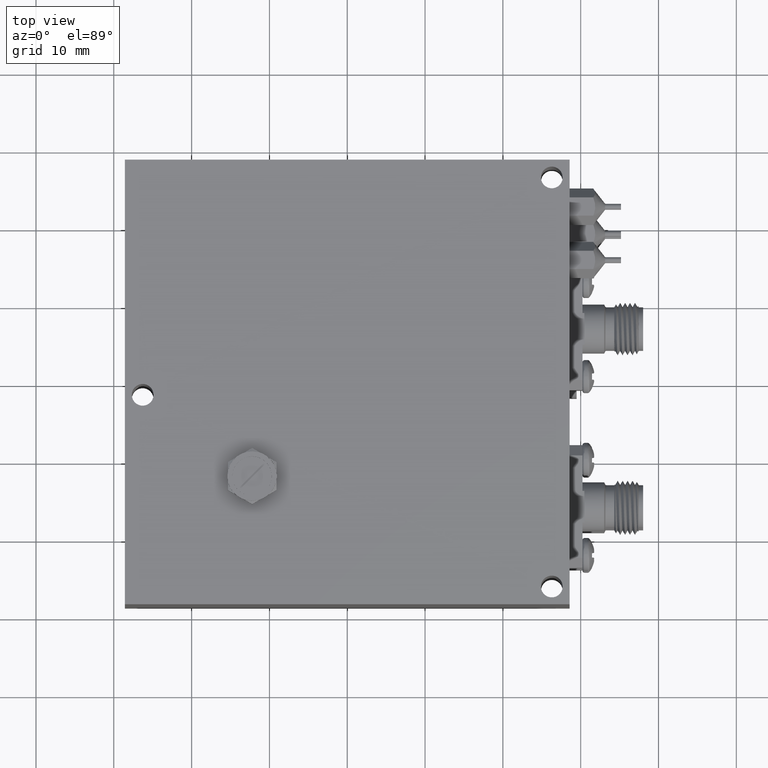
[diagram: clean part render]
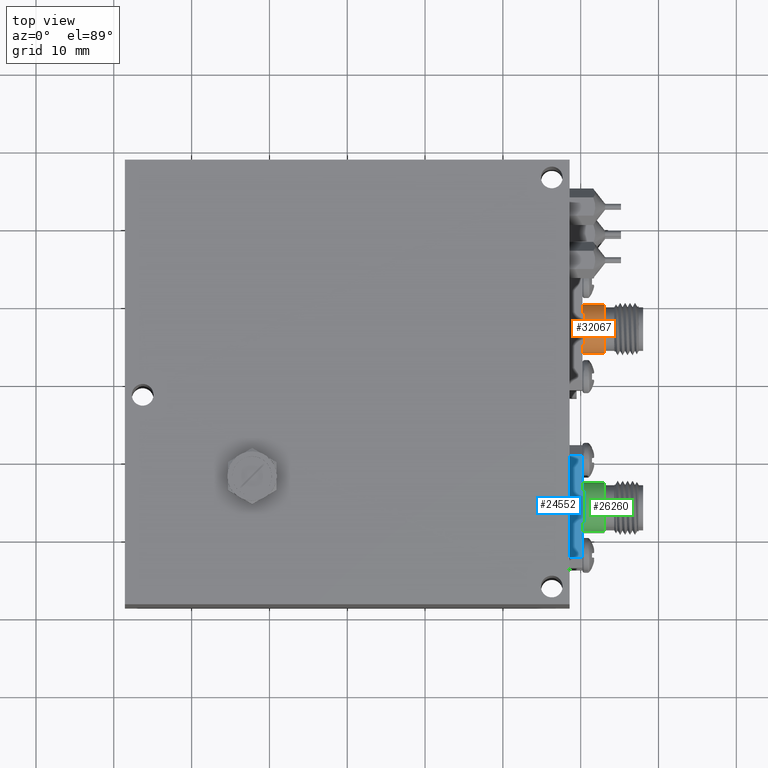
[diagram: same view with three faces highlighted in distinct colors, each labeled with its STEP entity id]
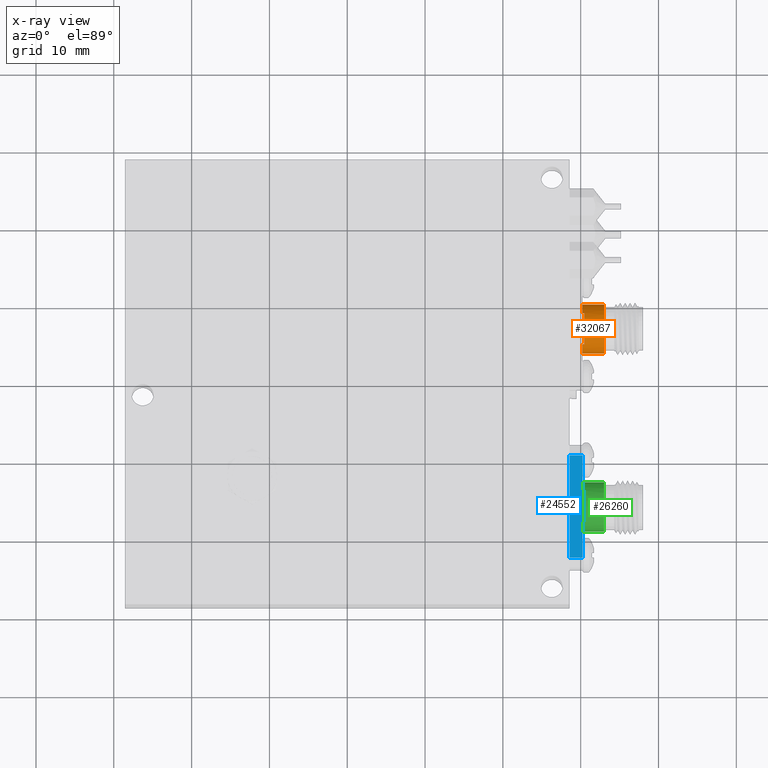
[diagram: x-ray of the same camera — body ghosted, the three highlighted faces saturated]
A machine part, top view with three faces highlighted in distinct colors.
The next image is the same camera in x-ray (body ghosted, the three faces saturated) — at least one of them is partly hidden behind the body in this view.
Their STEP definitions:

[orange] entity #32067 — the highlighted cylindrical surface (edge-blend (fillet) strip) has radius 3.1496 mm, axis along (-1, -0, 0).
#478 = ORIENTED_EDGE ( 'NONE', *, *, #9940, .F. ) ;
#653 = ORIENTED_EDGE ( 'NONE', *, *, #15463, .F. ) ;
#875 = CARTESIAN_POINT ( 'NONE',  ( 1.200000000000000200, 0.3546931615635866600, 0.9250000000000004900 ) ) ;
#1857 = VERTEX_POINT ( 'NONE', #26455 ) ;
#3141 = LINE ( 'NONE', #21406, #26452 ) ;
#3286 = CARTESIAN_POINT ( 'NONE',  ( 1.200000000000000200, 0.1953068384364122800, 0.9250000000000006000 ) ) ;
#3563 = VERTEX_POINT ( 'NONE', #22793 ) ;
#4871 = LINE ( 'NONE', #13957, #8658 ) ;
#5088 = DIRECTION ( 'NONE',  ( 1.000000000000000000, 0.0000000000000000000, -8.474091755303835000E-033 ) ) ;
#5212 = CARTESIAN_POINT ( 'NONE',  ( 1.190000000000000600, 0.2749999999999995200, 0.8300000000000001800 ) ) ;
#5553 = EDGE_CURVE ( 'NONE', #9769, #3563, #22967, .T. ) ;
#5805 = VECTOR ( 'NONE', #24990, 39.37007874015748100 ) ;
#5935 = EDGE_CURVE ( 'NONE', #24160, #9769, #21514, .T. ) ;
#6002 = AXIS2_PLACEMENT_3D ( 'NONE', #15062, #39250, #24485 ) ;
#6583 = DIRECTION ( 'NONE',  ( 0.0000000000000000000, -1.000000000000000000, 0.0000000000000000000 ) ) ;
#6847 = DIRECTION ( 'NONE',  ( -1.000000000000000000, -0.0000000000000000000, 8.474091755303835000E-033 ) ) ;
#7789 = ORIENTED_EDGE ( 'NONE', *, *, #18184, .T. ) ;
#8508 = CIRCLE ( 'NONE', #16072, 0.1240000000000002500 ) ;
#8658 = VECTOR ( 'NONE', #22753, 39.37007874015748100 ) ;
#8689 = CARTESIAN_POINT ( 'NONE',  ( 1.190000000000000600, 0.2749999999999995200, 0.8300000000000001800 ) ) ;
#9769 = VERTEX_POINT ( 'NONE', #3286 ) ;
#9940 = EDGE_CURVE ( 'NONE', #35870, #1857, #4871, .T. ) ;
#12555 = CIRCLE ( 'NONE', #12772, 0.1240000000000002500 ) ;
#12772 = AXIS2_PLACEMENT_3D ( 'NONE', #5212, #5088, #17114 ) ;
#13549 = ORIENTED_EDGE ( 'NONE', *, *, #19931, .T. ) ;
#13957 = CARTESIAN_POINT ( 'NONE',  ( 1.310000000000000500, 0.1509999999999993000, 0.8300000000000001800 ) ) ;
#15062 = CARTESIAN_POINT ( 'NONE',  ( 1.310000000000000500, 0.2749999999999995800, 0.8300000000000001800 ) ) ;
#15463 = EDGE_CURVE ( 'NONE', #24160, #18333, #36625, .T. ) ;
#16072 = AXIS2_PLACEMENT_3D ( 'NONE', #8689, #24005, #26921 ) ;
#16144 = ORIENTED_EDGE ( 'NONE', *, *, #5935, .T. ) ;
#16875 = CARTESIAN_POINT ( 'NONE',  ( 1.200000000000000200, 0.3546931615635866600, 0.9250000000000004900 ) ) ;
#17114 = DIRECTION ( 'NONE',  ( 0.0000000000000000000, -1.000000000000000000, 0.0000000000000000000 ) ) ;
#18144 = DIRECTION ( 'NONE',  ( 1.000000000000000000, 0.0000000000000000000, -8.474091755303835000E-033 ) ) ;
#18184 = EDGE_CURVE ( 'NONE', #27588, #18333, #8508, .T. ) ;
#18333 = VERTEX_POINT ( 'NONE', #25039 ) ;
#18509 = DIRECTION ( 'NONE',  ( -1.000000000000000000, 0.0000000000000000000, 8.474091755303835000E-033 ) ) ;
#19113 = EDGE_LOOP ( 'NONE', ( #478, #38143, #36653, #7789, #653, #16144, #35338, #13549 ) ) ;
#19931 = EDGE_CURVE ( 'NONE', #3563, #1857, #12555, .T. ) ;
#20669 = VERTEX_POINT ( 'NONE', #22132 ) ;
#20702 = AXIS2_PLACEMENT_3D ( 'NONE', #36259, #18144, #39280 ) ;
#21406 = CARTESIAN_POINT ( 'NONE',  ( 1.310000000000000500, 0.3989999999999998500, 0.8300000000000001800 ) ) ;
#21514 = CIRCLE ( 'NONE', #20702, 0.1240000000000002500 ) ;
#22132 = CARTESIAN_POINT ( 'NONE',  ( 1.300000000000000300, 0.3989999999999995800, 0.8300000000000001800 ) ) ;
#22753 = DIRECTION ( 'NONE',  ( -1.000000000000000000, -4.163336342344338300E-017, 6.162975822039154700E-033 ) ) ;
#22793 = CARTESIAN_POINT ( 'NONE',  ( 1.190000000000000600, 0.1953068384364122800, 0.9250000000000004900 ) ) ;
#22967 = LINE ( 'NONE', #30554, #37105 ) ;
#23579 = FACE_OUTER_BOUND ( 'NONE', #19113, .T. ) ;
#24005 = DIRECTION ( 'NONE',  ( 1.000000000000000000, 0.0000000000000000000, -8.474091755303835000E-033 ) ) ;
#24160 = VERTEX_POINT ( 'NONE', #16875 ) ;
#24485 = DIRECTION ( 'NONE',  ( 0.0000000000000000000, 1.000000000000000000, 0.0000000000000000000 ) ) ;
#24990 = DIRECTION ( 'NONE',  ( -1.000000000000000000, 0.0000000000000000000, 8.474091755303835000E-033 ) ) ;
#25039 = CARTESIAN_POINT ( 'NONE',  ( 1.190000000000000600, 0.3546931615635866600, 0.9250000000000003800 ) ) ;
#25750 = CIRCLE ( 'NONE', #34424, 0.1240000000000002500 ) ;
#25910 = CYLINDRICAL_SURFACE ( 'NONE', #6002, 0.1240000000000002600 ) ;
#26452 = VECTOR ( 'NONE', #30638, 39.37007874015748100 ) ;
#26455 = CARTESIAN_POINT ( 'NONE',  ( 1.190000000000000600, 0.1509999999999995200, 0.8300000000000001800 ) ) ;
#26921 = DIRECTION ( 'NONE',  ( 0.0000000000000000000, -1.000000000000000000, 0.0000000000000000000 ) ) ;
#27588 = VERTEX_POINT ( 'NONE', #28433 ) ;
#28433 = CARTESIAN_POINT ( 'NONE',  ( 1.190000000000000600, 0.3989999999999994700, 0.8300000000000001800 ) ) ;
#29763 = EDGE_CURVE ( 'NONE', #20669, #27588, #3141, .T. ) ;
#29943 = EDGE_CURVE ( 'NONE', #35870, #20669, #25750, .T. ) ;
#30554 = CARTESIAN_POINT ( 'NONE',  ( 1.200000000000000200, 0.1953068384364122800, 0.9250000000000004900 ) ) ;
#30638 = DIRECTION ( 'NONE',  ( -1.000000000000000000, -4.163336342344338300E-017, 6.162975822039154700E-033 ) ) ;
#30794 = CARTESIAN_POINT ( 'NONE',  ( 1.300000000000000300, 0.1509999999999995500, 0.8300000000000001800 ) ) ;
#30890 = CARTESIAN_POINT ( 'NONE',  ( 1.300000000000000300, 0.2749999999999995800, 0.8300000000000000700 ) ) ;
#32067 = ADVANCED_FACE ( 'NONE', ( #23579 ), #25910, .T. ) ;
#34424 = AXIS2_PLACEMENT_3D ( 'NONE', #30890, #6847, #6583 ) ;
#35338 = ORIENTED_EDGE ( 'NONE', *, *, #5553, .T. ) ;
#35870 = VERTEX_POINT ( 'NONE', #30794 ) ;
#36259 = CARTESIAN_POINT ( 'NONE',  ( 1.200000000000000200, 0.2749999999999995200, 0.8300000000000001800 ) ) ;
#36625 = LINE ( 'NONE', #875, #5805 ) ;
#36653 = ORIENTED_EDGE ( 'NONE', *, *, #29763, .T. ) ;
#37105 = VECTOR ( 'NONE', #18509, 39.37007874015748100 ) ;
#38143 = ORIENTED_EDGE ( 'NONE', *, *, #29943, .T. ) ;
#39250 = DIRECTION ( 'NONE',  ( -1.000000000000000000, -4.163336342344338300E-017, 6.162975822039154700E-033 ) ) ;
#39280 = DIRECTION ( 'NONE',  ( 0.0000000000000000000, -1.000000000000000000, 0.0000000000000000000 ) ) ;

[blue] entity #24552 — the highlighted planar face has unit normal (-0, 0, -1).
#554 = EDGE_CURVE ( 'NONE', #21812, #6478, #5556, .T. ) ;
#1511 = CARTESIAN_POINT ( 'NONE',  ( 1.200000000000000600, -0.7046931615635877400, 0.9250000000000004900 ) ) ;
#2097 = VERTEX_POINT ( 'NONE', #20031 ) ;
#3089 = DIRECTION ( 'NONE',  ( -2.775557561562889900E-016, -1.000000000000000000, 1.232595164407828500E-032 ) ) ;
#4188 = CARTESIAN_POINT ( 'NONE',  ( 1.200000000000000600, -0.5453068384364131400, 0.9250000000000003800 ) ) ;
#4269 = LINE ( 'NONE', #21837, #9517 ) ;
#4295 = LINE ( 'NONE', #29670, #5214 ) ;
#4445 = VERTEX_POINT ( 'NONE', #29532 ) ;
#4586 = VECTOR ( 'NONE', #36672, 39.37007874015748100 ) ;
#5214 = VECTOR ( 'NONE', #3089, 39.37007874015748100 ) ;
#5220 = AXIS2_PLACEMENT_3D ( 'NONE', #32561, #20530, #8389 ) ;
#5556 = LINE ( 'NONE', #23894, #35940 ) ;
#6478 = VERTEX_POINT ( 'NONE', #30010 ) ;
#6684 = DIRECTION ( 'NONE',  ( -2.775557561562889900E-016, -1.000000000000000000, 1.232595164407828500E-032 ) ) ;
#7364 = VERTEX_POINT ( 'NONE', #12424 ) ;
#8389 = DIRECTION ( 'NONE',  ( 2.775557561562889900E-016, 1.000000000000000000, -1.232595164407828500E-032 ) ) ;
#8442 = ORIENTED_EDGE ( 'NONE', *, *, #554, .F. ) ;
#8699 = LINE ( 'NONE', #8767, #18224 ) ;
#8767 = CARTESIAN_POINT ( 'NONE',  ( 1.190000000000000600, -0.3272899900910277200, 0.9250000000000004900 ) ) ;
#8942 = VECTOR ( 'NONE', #37351, 39.37007874015748100 ) ;
#9185 = ORIENTED_EDGE ( 'NONE', *, *, #11209, .F. ) ;
#9252 = EDGE_LOOP ( 'NONE', ( #21695, #32525, #14025, #21883, #9185, #8442, #16360, #38586 ) ) ;
#9517 = VECTOR ( 'NONE', #15481, 39.37007874015748100 ) ;
#9699 = EDGE_CURVE ( 'NONE', #2097, #29539, #8699, .T. ) ;
#9977 = CARTESIAN_POINT ( 'NONE',  ( 1.200000000000000600, -0.7046931615635877400, 0.9250000000000004900 ) ) ;
#10031 = LINE ( 'NONE', #1511, #25758 ) ;
#11209 = EDGE_CURVE ( 'NONE', #6478, #24886, #12025, .T. ) ;
#12025 = LINE ( 'NONE', #24954, #25776 ) ;
#12424 = CARTESIAN_POINT ( 'NONE',  ( 1.125000000000000700, -0.8842430274072488100, 0.9250000000000004900 ) ) ;
#13365 = DIRECTION ( 'NONE',  ( -2.775557561562889900E-016, -1.000000000000000000, 1.232595164407828500E-032 ) ) ;
#14014 = FACE_OUTER_BOUND ( 'NONE', #9252, .T. ) ;
#14025 = ORIENTED_EDGE ( 'NONE', *, *, #14239, .T. ) ;
#14239 = EDGE_CURVE ( 'NONE', #19891, #7364, #4295, .T. ) ;
#15093 = LINE ( 'NONE', #34033, #4586 ) ;
#15481 = DIRECTION ( 'NONE',  ( 1.000000000000000000, 0.0000000000000000000, 8.474091755303835000E-033 ) ) ;
#16360 = ORIENTED_EDGE ( 'NONE', *, *, #19872, .F. ) ;
#18224 = VECTOR ( 'NONE', #30013, 39.37007874015748100 ) ;
#19429 = CARTESIAN_POINT ( 'NONE',  ( 1.190000000000000600, -0.8842430274072491400, 0.9250000000000003800 ) ) ;
#19872 = EDGE_CURVE ( 'NONE', #4445, #21812, #10031, .T. ) ;
#19891 = VERTEX_POINT ( 'NONE', #22580 ) ;
#20031 = CARTESIAN_POINT ( 'NONE',  ( 1.190000000000000600, -0.3657569725927514700, 0.9250000000000004900 ) ) ;
#20530 = DIRECTION ( 'NONE',  ( -1.110223024625164400E-016, 1.848892746611769100E-032, -1.000000000000000000 ) ) ;
#21695 = ORIENTED_EDGE ( 'NONE', *, *, #9699, .F. ) ;
#21812 = VERTEX_POINT ( 'NONE', #9977 ) ;
#21837 = CARTESIAN_POINT ( 'NONE',  ( 1.190000000000000600, -0.8842430274072488100, 0.9250000000000003800 ) ) ;
#21883 = ORIENTED_EDGE ( 'NONE', *, *, #26366, .T. ) ;
#22580 = CARTESIAN_POINT ( 'NONE',  ( 1.125000000000000000, -0.3657569725927514700, 0.9250000000000006000 ) ) ;
#23894 = CARTESIAN_POINT ( 'NONE',  ( 1.200000000000000600, -0.7046931615635877400, 0.9250000000000004900 ) ) ;
#24552 = ADVANCED_FACE ( 'NONE', ( #14014 ), #29496, .F. ) ;
#24886 = VERTEX_POINT ( 'NONE', #19429 ) ;
#24954 = CARTESIAN_POINT ( 'NONE',  ( 1.190000000000000600, -0.3272899900910277200, 0.9250000000000004900 ) ) ;
#25758 = VECTOR ( 'NONE', #13365, 39.37007874015748100 ) ;
#25776 = VECTOR ( 'NONE', #6684, 39.37007874015748100 ) ;
#26065 = LINE ( 'NONE', #4188, #8942 ) ;
#26366 = EDGE_CURVE ( 'NONE', #7364, #24886, #4269, .T. ) ;
#28182 = EDGE_CURVE ( 'NONE', #4445, #29539, #26065, .T. ) ;
#28797 = CARTESIAN_POINT ( 'NONE',  ( 1.190000000000000600, -0.5453068384364133700, 0.9250000000000003800 ) ) ;
#29496 = PLANE ( 'NONE',  #5220 ) ;
#29532 = CARTESIAN_POINT ( 'NONE',  ( 1.200000000000000600, -0.5453068384364131400, 0.9250000000000003800 ) ) ;
#29539 = VERTEX_POINT ( 'NONE', #28797 ) ;
#29670 = CARTESIAN_POINT ( 'NONE',  ( 1.125000000000000200, -0.3272899900910277200, 0.9250000000000004900 ) ) ;
#30010 = CARTESIAN_POINT ( 'NONE',  ( 1.190000000000000600, -0.7046931615635875200, 0.9250000000000004900 ) ) ;
#30013 = DIRECTION ( 'NONE',  ( -2.775557561562889900E-016, -1.000000000000000000, 1.232595164407828500E-032 ) ) ;
#32525 = ORIENTED_EDGE ( 'NONE', *, *, #37432, .T. ) ;
#32561 = CARTESIAN_POINT ( 'NONE',  ( 1.190000000000000600, -0.3272899900910277200, 0.9250000000000004900 ) ) ;
#34033 = CARTESIAN_POINT ( 'NONE',  ( 1.190000000000000600, -0.3657569725927514700, 0.9250000000000004900 ) ) ;
#35940 = VECTOR ( 'NONE', #36152, 39.37007874015748100 ) ;
#36152 = DIRECTION ( 'NONE',  ( -1.000000000000000000, 0.0000000000000000000, -8.474091755303835000E-033 ) ) ;
#36672 = DIRECTION ( 'NONE',  ( -1.000000000000000000, 0.0000000000000000000, -8.474091755303835000E-033 ) ) ;
#37351 = DIRECTION ( 'NONE',  ( -1.000000000000000000, 0.0000000000000000000, -8.474091755303835000E-033 ) ) ;
#37432 = EDGE_CURVE ( 'NONE', #2097, #19891, #15093, .T. ) ;
#38586 = ORIENTED_EDGE ( 'NONE', *, *, #28182, .T. ) ;

[green] entity #26260 — the highlighted cylindrical surface (edge-blend (fillet) strip) has radius 3.1496 mm, axis along (-1, 0, -0).
#554 = EDGE_CURVE ( 'NONE', #21812, #6478, #5556, .T. ) ;
#1267 = LINE ( 'NONE', #31446, #12248 ) ;
#2446 = ORIENTED_EDGE ( 'NONE', *, *, #12868, .T. ) ;
#3528 = ORIENTED_EDGE ( 'NONE', *, *, #36015, .F. ) ;
#4131 = DIRECTION ( 'NONE',  ( 0.0000000000000000000, -1.000000000000000000, 0.0000000000000000000 ) ) ;
#4188 = CARTESIAN_POINT ( 'NONE',  ( 1.200000000000000600, -0.5453068384364131400, 0.9250000000000003800 ) ) ;
#4445 = VERTEX_POINT ( 'NONE', #29532 ) ;
#4522 = CARTESIAN_POINT ( 'NONE',  ( 1.310000000000000500, -0.6250000000000004400, 0.8300000000000001800 ) ) ;
#5556 = LINE ( 'NONE', #23894, #35940 ) ;
#6478 = VERTEX_POINT ( 'NONE', #30010 ) ;
#6627 = CYLINDRICAL_SURFACE ( 'NONE', #8612, 0.1240000000000002400 ) ;
#6934 = ORIENTED_EDGE ( 'NONE', *, *, #17342, .T. ) ;
#7383 = CARTESIAN_POINT ( 'NONE',  ( 1.310000000000000500, -0.5010000000000002200, 0.8300000000000001800 ) ) ;
#7610 = CARTESIAN_POINT ( 'NONE',  ( 1.190000000000000600, -0.6250000000000004400, 0.8300000000000001800 ) ) ;
#8095 = AXIS2_PLACEMENT_3D ( 'NONE', #11604, #32461, #23611 ) ;
#8612 = AXIS2_PLACEMENT_3D ( 'NONE', #4522, #31485, #4131 ) ;
#8942 = VECTOR ( 'NONE', #37351, 39.37007874015748100 ) ;
#8980 = CARTESIAN_POINT ( 'NONE',  ( 1.190000000000000600, -0.7490000000000004400, 0.8300000000000001800 ) ) ;
#9080 = CARTESIAN_POINT ( 'NONE',  ( 1.190000000000000600, -0.5010000000000004400, 0.8300000000000001800 ) ) ;
#9977 = CARTESIAN_POINT ( 'NONE',  ( 1.200000000000000600, -0.7046931615635877400, 0.9250000000000004900 ) ) ;
#10260 = VERTEX_POINT ( 'NONE', #15135 ) ;
#11604 = CARTESIAN_POINT ( 'NONE',  ( 1.300000000000000300, -0.6250000000000004400, 0.8300000000000002900 ) ) ;
#12248 = VECTOR ( 'NONE', #13296, 39.37007874015748100 ) ;
#12868 = EDGE_CURVE ( 'NONE', #4445, #21812, #25307, .T. ) ;
#13296 = DIRECTION ( 'NONE',  ( -1.000000000000000000, 4.163336342344338300E-017, -6.162975822039154700E-033 ) ) ;
#15135 = CARTESIAN_POINT ( 'NONE',  ( 1.300000000000000300, -0.7490000000000004400, 0.8300000000000001800 ) ) ;
#15483 = CARTESIAN_POINT ( 'NONE',  ( 1.190000000000000600, -0.6250000000000004400, 0.8300000000000001800 ) ) ;
#16513 = ORIENTED_EDGE ( 'NONE', *, *, #28206, .T. ) ;
#17342 = EDGE_CURVE ( 'NONE', #18292, #29539, #22866, .T. ) ;
#17558 = EDGE_CURVE ( 'NONE', #10260, #21472, #31356, .T. ) ;
#18120 = VERTEX_POINT ( 'NONE', #8980 ) ;
#18292 = VERTEX_POINT ( 'NONE', #9080 ) ;
#18504 = DIRECTION ( 'NONE',  ( 1.000000000000000000, 0.0000000000000000000, 8.474091755303835000E-033 ) ) ;
#21147 = AXIS2_PLACEMENT_3D ( 'NONE', #7610, #37958, #25982 ) ;
#21472 = VERTEX_POINT ( 'NONE', #22819 ) ;
#21812 = VERTEX_POINT ( 'NONE', #9977 ) ;
#22335 = DIRECTION ( 'NONE',  ( -1.000000000000000000, 4.163336342344338300E-017, -6.162975822039154700E-033 ) ) ;
#22819 = CARTESIAN_POINT ( 'NONE',  ( 1.300000000000000300, -0.5010000000000004400, 0.8300000000000001800 ) ) ;
#22866 = CIRCLE ( 'NONE', #21147, 0.1240000000000002400 ) ;
#23611 = DIRECTION ( 'NONE',  ( 0.0000000000000000000, 1.000000000000000000, 0.0000000000000000000 ) ) ;
#23894 = CARTESIAN_POINT ( 'NONE',  ( 1.200000000000000600, -0.7046931615635877400, 0.9250000000000004900 ) ) ;
#24280 = EDGE_LOOP ( 'NONE', ( #37880, #16513, #6934, #27307, #2446, #30216, #33087, #3528 ) ) ;
#25065 = AXIS2_PLACEMENT_3D ( 'NONE', #29025, #34856, #25749 ) ;
#25307 = CIRCLE ( 'NONE', #25065, 0.1240000000000002400 ) ;
#25749 = DIRECTION ( 'NONE',  ( 0.0000000000000000000, 1.000000000000000000, 0.0000000000000000000 ) ) ;
#25982 = DIRECTION ( 'NONE',  ( 0.0000000000000000000, 1.000000000000000000, 0.0000000000000000000 ) ) ;
#26065 = LINE ( 'NONE', #4188, #8942 ) ;
#26260 = ADVANCED_FACE ( 'NONE', ( #32822 ), #6627, .T. ) ;
#26598 = CIRCLE ( 'NONE', #31737, 0.1240000000000002400 ) ;
#26963 = EDGE_CURVE ( 'NONE', #6478, #18120, #26598, .T. ) ;
#27307 = ORIENTED_EDGE ( 'NONE', *, *, #28182, .F. ) ;
#27509 = VECTOR ( 'NONE', #22335, 39.37007874015748100 ) ;
#28182 = EDGE_CURVE ( 'NONE', #4445, #29539, #26065, .T. ) ;
#28206 = EDGE_CURVE ( 'NONE', #21472, #18292, #31252, .T. ) ;
#28797 = CARTESIAN_POINT ( 'NONE',  ( 1.190000000000000600, -0.5453068384364133700, 0.9250000000000003800 ) ) ;
#29025 = CARTESIAN_POINT ( 'NONE',  ( 1.200000000000000200, -0.6250000000000004400, 0.8300000000000001800 ) ) ;
#29532 = CARTESIAN_POINT ( 'NONE',  ( 1.200000000000000600, -0.5453068384364131400, 0.9250000000000003800 ) ) ;
#29539 = VERTEX_POINT ( 'NONE', #28797 ) ;
#30010 = CARTESIAN_POINT ( 'NONE',  ( 1.190000000000000600, -0.7046931615635875200, 0.9250000000000004900 ) ) ;
#30216 = ORIENTED_EDGE ( 'NONE', *, *, #554, .T. ) ;
#31252 = LINE ( 'NONE', #7383, #27509 ) ;
#31356 = CIRCLE ( 'NONE', #8095, 0.1240000000000002400 ) ;
#31446 = CARTESIAN_POINT ( 'NONE',  ( 1.310000000000000500, -0.7490000000000006700, 0.8300000000000001800 ) ) ;
#31485 = DIRECTION ( 'NONE',  ( -1.000000000000000000, 4.163336342344338300E-017, -6.162975822039154700E-033 ) ) ;
#31737 = AXIS2_PLACEMENT_3D ( 'NONE', #15483, #18504, #34110 ) ;
#32461 = DIRECTION ( 'NONE',  ( -1.000000000000000000, -0.0000000000000000000, -8.474091755303835000E-033 ) ) ;
#32822 = FACE_OUTER_BOUND ( 'NONE', #24280, .T. ) ;
#33087 = ORIENTED_EDGE ( 'NONE', *, *, #26963, .T. ) ;
#34110 = DIRECTION ( 'NONE',  ( 0.0000000000000000000, 1.000000000000000000, 0.0000000000000000000 ) ) ;
#34856 = DIRECTION ( 'NONE',  ( 1.000000000000000000, 0.0000000000000000000, 8.474091755303835000E-033 ) ) ;
#35940 = VECTOR ( 'NONE', #36152, 39.37007874015748100 ) ;
#36015 = EDGE_CURVE ( 'NONE', #10260, #18120, #1267, .T. ) ;
#36152 = DIRECTION ( 'NONE',  ( -1.000000000000000000, 0.0000000000000000000, -8.474091755303835000E-033 ) ) ;
#37351 = DIRECTION ( 'NONE',  ( -1.000000000000000000, 0.0000000000000000000, -8.474091755303835000E-033 ) ) ;
#37880 = ORIENTED_EDGE ( 'NONE', *, *, #17558, .T. ) ;
#37958 = DIRECTION ( 'NONE',  ( 1.000000000000000000, 0.0000000000000000000, 8.474091755303835000E-033 ) ) ;